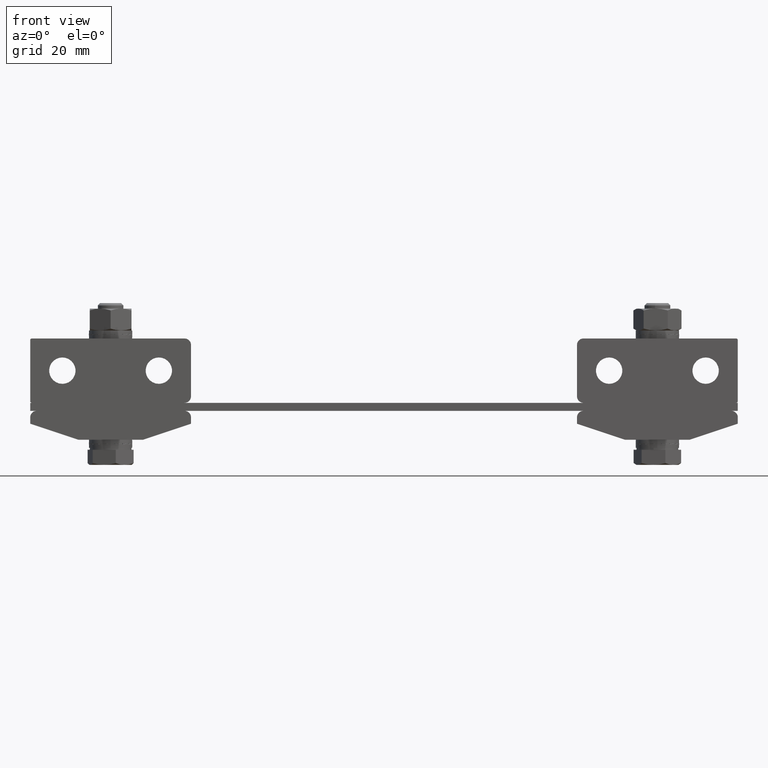
[diagram: clean part render]
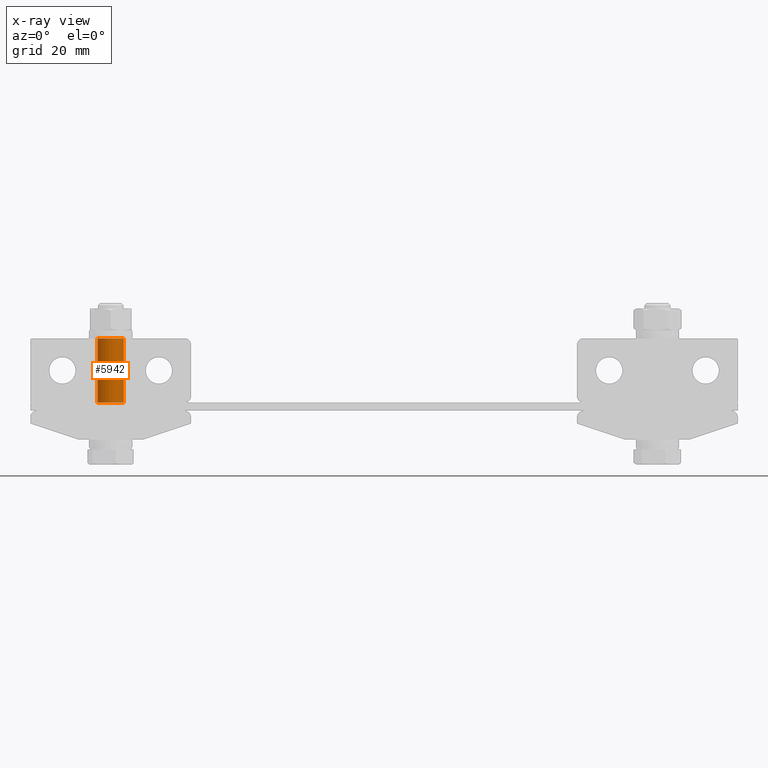
[diagram: x-ray — body ghosted, one internal face saturated and labeled with its STEP entity id]
A machine part, front view, then the same camera in x-ray: the body is ghosted and one INTERNAL B-rep face — a face not visible from any outside direction — is saturated and labeled: STEP entity #5942.
In plain terms, the highlighted cylindrical surface (edge-blend (fillet) strip) has radius 4.1 mm, axis along (0, 0, 1).
Its self-contained STEP definition (entity closure, byte-faithful):
#149 = LINE ( 'NONE', #6653, #15747 ) ;
#378 = EDGE_CURVE ( 'NONE', #12636, #5971, #149, .T. ) ;
#429 = CARTESIAN_POINT ( 'NONE',  ( -85.00000000000000000, -5.204170427930419700E-015, 22.50000000000000000 ) ) ;
#620 = FACE_OUTER_BOUND ( 'NONE', #4185, .T. ) ;
#1034 = VERTEX_POINT ( 'NONE', #8850 ) ;
#3127 = ORIENTED_EDGE ( 'NONE', *, *, #18098, .T. ) ;
#4079 = CIRCLE ( 'NONE', #16063, 4.100000000000006800 ) ;
#4185 = EDGE_LOOP ( 'NONE', ( #8347, #16568, #7568, #3127 ) ) ;
#5427 = EDGE_CURVE ( 'NONE', #13990, #1034, #11570, .T. ) ;
#5942 = ADVANCED_FACE ( 'NONE', ( #620 ), #18926, .F. ) ;
#5971 = VERTEX_POINT ( 'NONE', #17228 ) ;
#6364 = DIRECTION ( 'NONE',  ( -1.000000000000000000, 0.0000000000000000000, 0.0000000000000000000 ) ) ;
#6653 = CARTESIAN_POINT ( 'NONE',  ( -80.90000000000000600, -5.706275615580834400E-015, 22.50000000000000000 ) ) ;
#7378 = CARTESIAN_POINT ( 'NONE',  ( -80.90000000000000600, -5.706275615580833700E-015, 2.500000000000000000 ) ) ;
#7395 = CARTESIAN_POINT ( 'NONE',  ( -85.00000000000000000, -5.204170427930419700E-015, 2.500000000000000000 ) ) ;
#7568 = ORIENTED_EDGE ( 'NONE', *, *, #5427, .T. ) ;
#7864 = CARTESIAN_POINT ( 'NONE',  ( -85.00000000000000000, -5.204170427930419700E-015, 22.50000000000000000 ) ) ;
#7991 = DIRECTION ( 'NONE',  ( 0.0000000000000000000, 0.0000000000000000000, 1.000000000000000000 ) ) ;
#8347 = ORIENTED_EDGE ( 'NONE', *, *, #378, .F. ) ;
#8850 = CARTESIAN_POINT ( 'NONE',  ( -89.10000000000000900, -5.204170427930419700E-015, 22.50000000000000000 ) ) ;
#8977 = DIRECTION ( 'NONE',  ( -1.000000000000000000, 0.0000000000000000000, 0.0000000000000000000 ) ) ;
#9926 = CIRCLE ( 'NONE', #11330, 4.100000000000006800 ) ;
#11042 = CARTESIAN_POINT ( 'NONE',  ( -89.10000000000000900, -5.204170427930419700E-015, 2.500000000000000000 ) ) ;
#11076 = VECTOR ( 'NONE', #14514, 1000.000000000000000 ) ;
#11330 = AXIS2_PLACEMENT_3D ( 'NONE', #7395, #18405, #8977 ) ;
#11453 = DIRECTION ( 'NONE',  ( 0.0000000000000000000, 0.0000000000000000000, 1.000000000000000000 ) ) ;
#11570 = LINE ( 'NONE', #19385, #11076 ) ;
#12622 = DIRECTION ( 'NONE',  ( 0.0000000000000000000, 0.0000000000000000000, 1.000000000000000000 ) ) ;
#12636 = VERTEX_POINT ( 'NONE', #7378 ) ;
#13990 = VERTEX_POINT ( 'NONE', #11042 ) ;
#14514 = DIRECTION ( 'NONE',  ( 0.0000000000000000000, 0.0000000000000000000, 1.000000000000000000 ) ) ;
#15747 = VECTOR ( 'NONE', #11453, 1000.000000000000000 ) ;
#15891 = DIRECTION ( 'NONE',  ( -1.000000000000000000, 0.0000000000000000000, 0.0000000000000000000 ) ) ;
#16063 = AXIS2_PLACEMENT_3D ( 'NONE', #429, #7991, #15891 ) ;
#16568 = ORIENTED_EDGE ( 'NONE', *, *, #19083, .F. ) ;
#16642 = AXIS2_PLACEMENT_3D ( 'NONE', #7864, #12622, #6364 ) ;
#17228 = CARTESIAN_POINT ( 'NONE',  ( -80.90000000000000600, -5.706275615580833700E-015, 22.50000000000000000 ) ) ;
#18098 = EDGE_CURVE ( 'NONE', #1034, #5971, #4079, .T. ) ;
#18405 = DIRECTION ( 'NONE',  ( 0.0000000000000000000, 0.0000000000000000000, 1.000000000000000000 ) ) ;
#18926 = CYLINDRICAL_SURFACE ( 'NONE', #16642, 4.100000000000006800 ) ;
#19083 = EDGE_CURVE ( 'NONE', #13990, #12636, #9926, .T. ) ;
#19385 = CARTESIAN_POINT ( 'NONE',  ( -89.10000000000000900, -5.204170427930419700E-015, 22.50000000000000000 ) ) ;